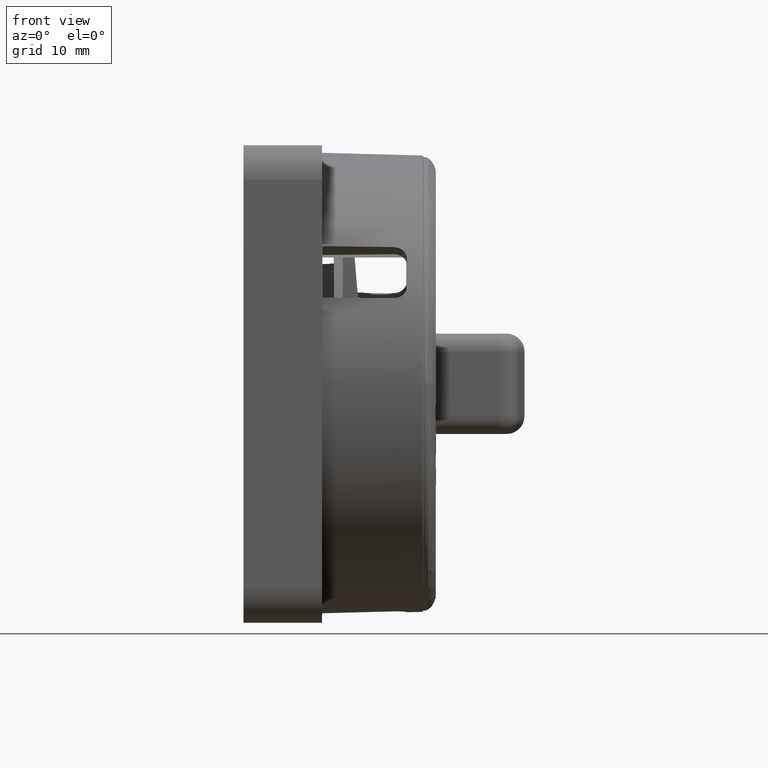
[diagram: clean part render]
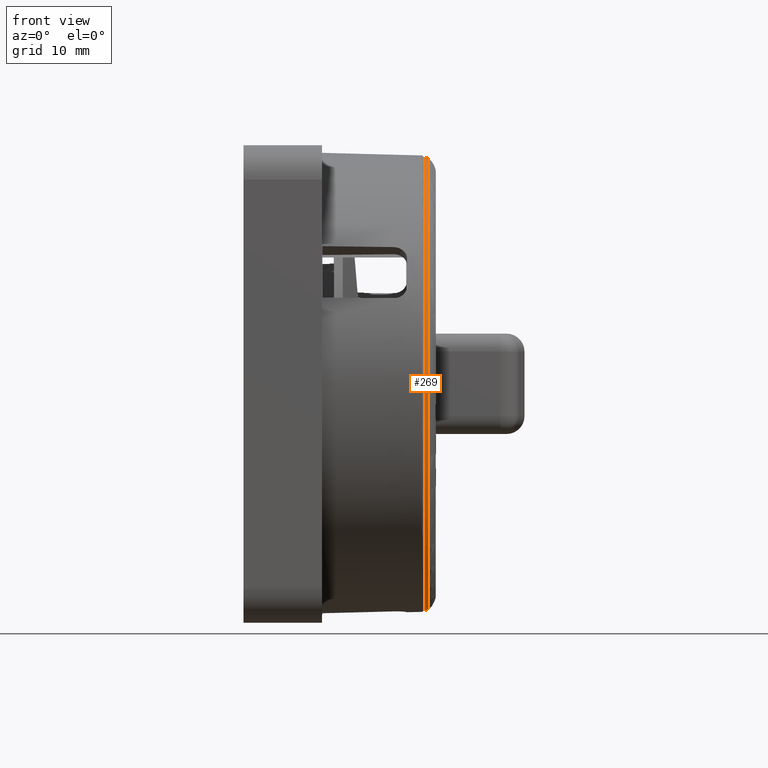
[diagram: same view with one face highlighted and labeled with its STEP entity id]
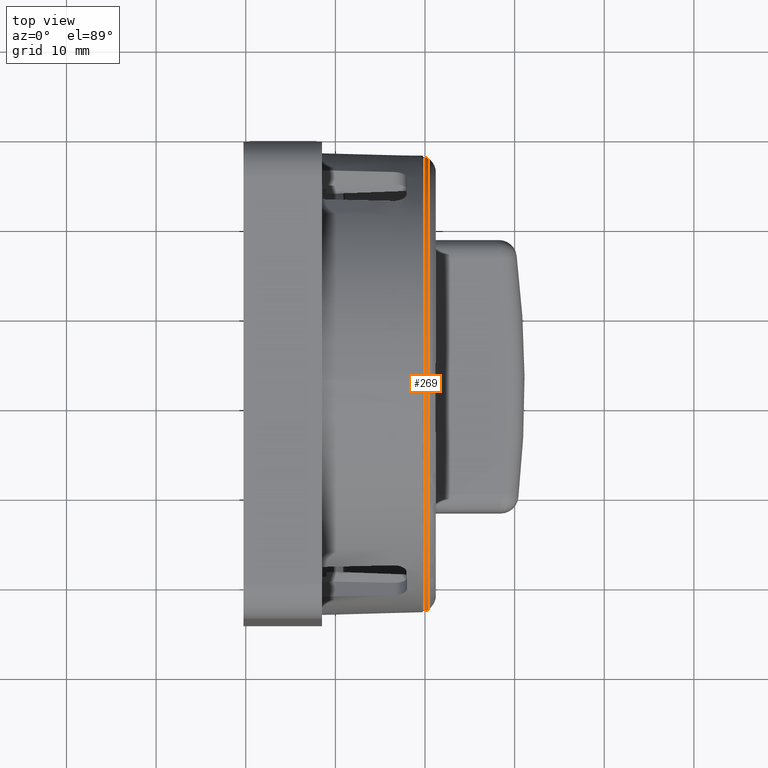
[diagram: same view with one face highlighted and labeled with its STEP entity id]
A machine part, front view. The second image highlights one B-rep face of the part: STEP entity #269.
A second angle (top view) of the same face is appended — the face is thin or edge-on in the first view.
In plain terms, the highlighted toroidal blend (fillet) surface has major radius 24.7 mm and minor (blend) radius 0.6 mm.
Its self-contained STEP definition (entity closure, byte-faithful):
#34=TOROIDAL_SURFACE('',#1711,24.7,0.599999999999998);
#269=ADVANCED_FACE('',(#377,#378),#34,.T.);
#377=FACE_BOUND('',#466,.T.);
#378=FACE_BOUND('',#467,.T.);
#466=EDGE_LOOP('',(#924));
#467=EDGE_LOOP('',(#925));
#563=CIRCLE('',#1708,25.3);
#564=CIRCLE('',#1710,25.1991645329207);
#924=ORIENTED_EDGE('',*,*,#1383,.T.);
#925=ORIENTED_EDGE('',*,*,#1382,.F.);
#1176=VERTEX_POINT('',#2980);
#1177=VERTEX_POINT('',#2983);
#1382=EDGE_CURVE('',#1176,#1176,#563,.T.);
#1383=EDGE_CURVE('',#1177,#1177,#564,.T.);
#1708=AXIS2_PLACEMENT_3D('',#2979,#2074,#2075);
#1710=AXIS2_PLACEMENT_3D('',#2982,#2078,#2079);
#1711=AXIS2_PLACEMENT_3D('',#2984,#2080,#2081);
#2074=DIRECTION('',(-0.999999999999995,-8.31535970370452E-010,-1.02954039982998E-007));
#2075=DIRECTION('',(8.3153565280691E-010,-1.,2.36455371093457E-009));
#2078=DIRECTION('',(-0.999999999999995,-8.31535970370452E-010,-1.02954039982998E-007));
#2079=DIRECTION('',(8.31535600900787E-010,-1.,2.36455385159177E-009));
#2080=DIRECTION('',(-0.999999999999995,-8.31535970370452E-010,-1.02954039982998E-007));
#2081=DIRECTION('',(-8.3153565280691E-010,1.,-2.36455371093457E-009));
#2979=CARTESIAN_POINT('',(90.0049645344585,32.4954160877932,61.3460584487932));
#2980=CARTESIAN_POINT('',(90.0049645554964,7.19541608779321,61.3460585086164));
#2982=CARTESIAN_POINT('',(90.3378830966836,32.4954160880701,61.3460584830685));
#2983=CARTESIAN_POINT('',(90.3378831176376,7.29625155514935,61.3460585426533));
#2984=CARTESIAN_POINT('',(90.0049645344585,32.4954160877932,61.3460584487932));